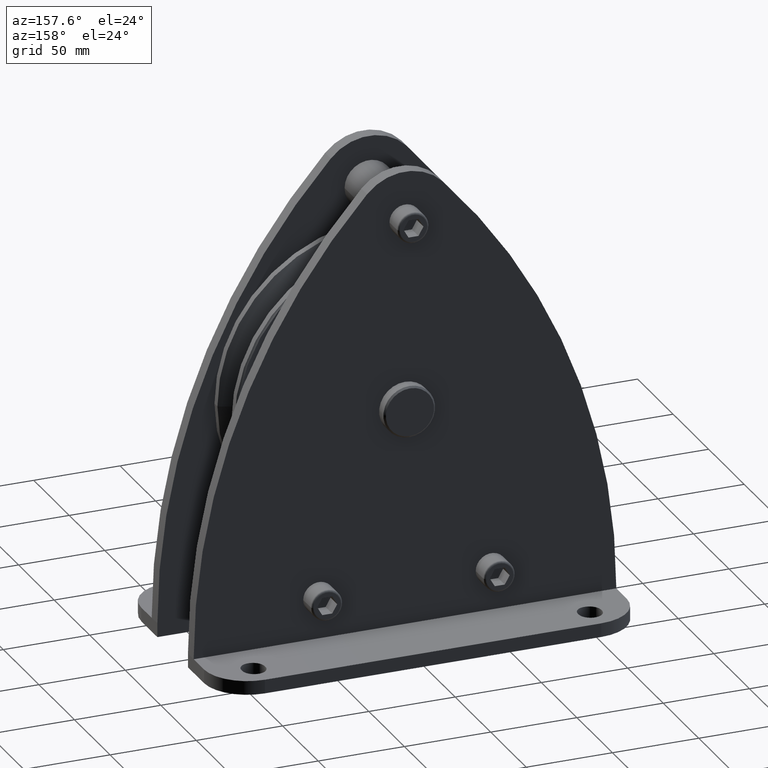
[diagram: clean part render]
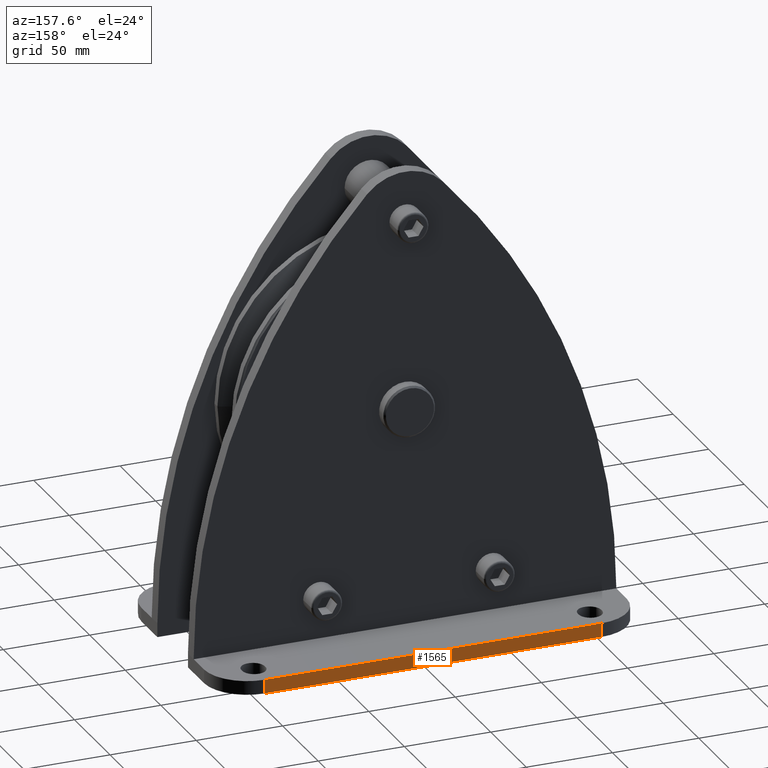
[diagram: same view with one face highlighted and labeled with its STEP entity id]
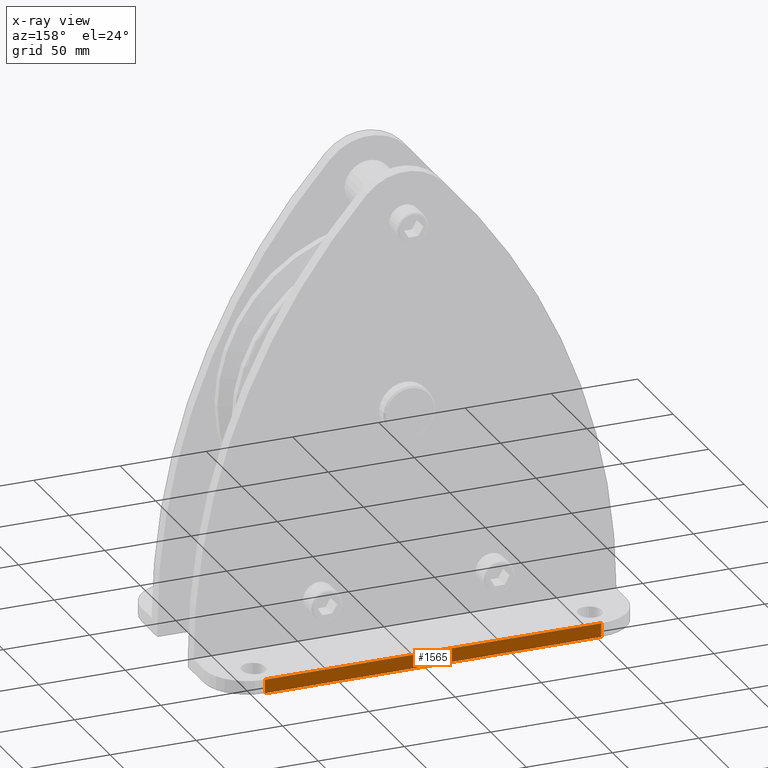
[diagram: x-ray of the same camera — body ghosted, the highlighted face saturated]
A machine part, auxiliary view. The second image highlights one B-rep face of the part: STEP entity #1565.
The next image is the same camera in x-ray: the body ghosted, the highlighted face saturated — about 0% of this face is hidden behind the body in this view.
In plain terms, the highlighted planar face has unit normal (0, 1, 0).
Its self-contained STEP definition (entity closure, byte-faithful):
#1565=ADVANCED_FACE('',(#3392),#3393,.T.);
#3392=FACE_OUTER_BOUND('',#5478,.T.);
#3393=PLANE('',#5479);
#5478=EDGE_LOOP('',(#10411,#10412,#10413,#10414));
#5479=AXIS2_PLACEMENT_3D('',#10415,#10416,#10417);
#10411=ORIENTED_EDGE('',*,*,#14198,.T.);
#10412=ORIENTED_EDGE('',*,*,#14201,.F.);
#10413=ORIENTED_EDGE('',*,*,#14164,.F.);
#10414=ORIENTED_EDGE('',*,*,#14203,.T.);
#10415=CARTESIAN_POINT('',(1.723776676954E-011,69.0,-135.0));
#10416=DIRECTION('',(0.0,1.0,0.0));
#10417=DIRECTION('',(-1.0,0.0,0.0));
#14164=EDGE_CURVE('',#17565,#17567,#17568,.T.);
#14198=EDGE_CURVE('',#17618,#17616,#17619,.T.);
#14201=EDGE_CURVE('',#17567,#17616,#17622,.T.);
#14203=EDGE_CURVE('',#17565,#17618,#17624,.T.);
#17565=VERTEX_POINT('',#24888);
#17567=VERTEX_POINT('',#24890);
#17568=LINE('',#24891,#24892);
#17616=VERTEX_POINT('',#24954);
#17618=VERTEX_POINT('',#24956);
#17619=LINE('',#24957,#24958);
#17622=LINE('',#24961,#24962);
#17624=LINE('',#24964,#24965);
#24888=CARTESIAN_POINT('',(-97.4999999999655,69.0,-135.0));
#24890=CARTESIAN_POINT('',(97.5,69.0,-135.0));
#24891=CARTESIAN_POINT('',(-97.5,69.0,-135.0));
#24892=VECTOR('',#29083,1.0);
#24954=CARTESIAN_POINT('',(97.5,69.0,-127.0));
#24956=CARTESIAN_POINT('',(-97.4999999999655,69.0,-127.0));
#24957=CARTESIAN_POINT('',(-97.5,69.0,-127.0));
#24958=VECTOR('',#29134,1.0);
#24961=CARTESIAN_POINT('',(97.5,69.0,-135.0));
#24962=VECTOR('',#29138,1.0);
#24964=CARTESIAN_POINT('',(-97.4999999999655,69.0,-135.0));
#24965=VECTOR('',#29139,1.0);
#29083=DIRECTION('',(1.0,0.0,0.0));
#29134=DIRECTION('',(1.0,0.0,0.0));
#29138=DIRECTION('',(0.0,0.0,1.0));
#29139=DIRECTION('',(0.0,0.0,1.0));